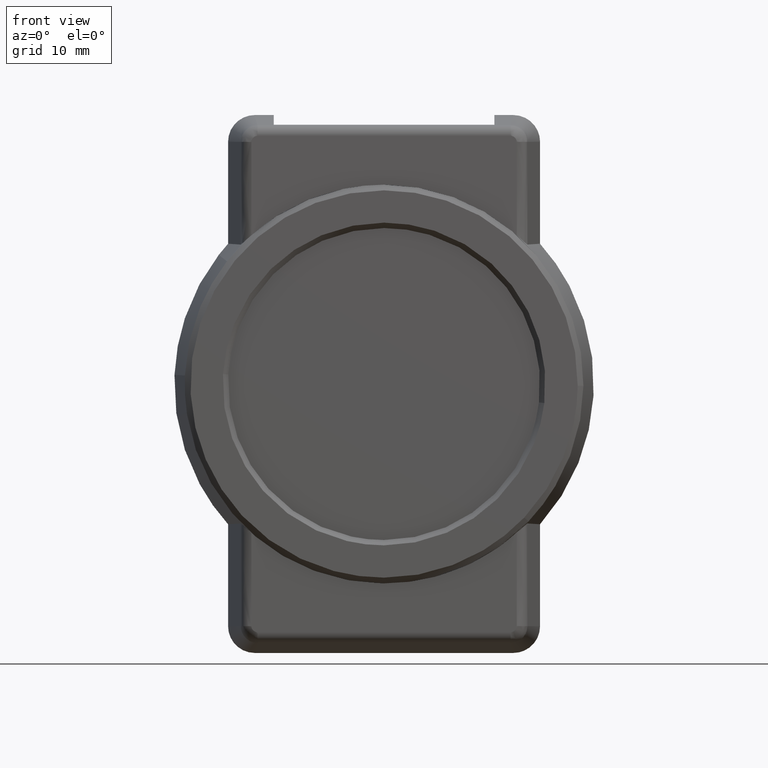
[diagram: clean part render]
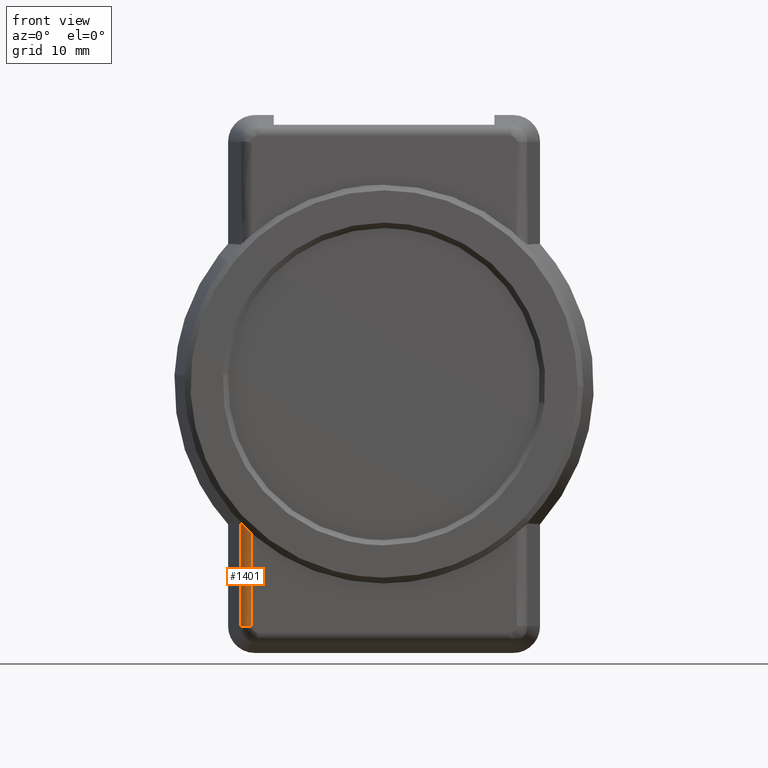
[diagram: same view with one face highlighted and labeled with its STEP entity id]
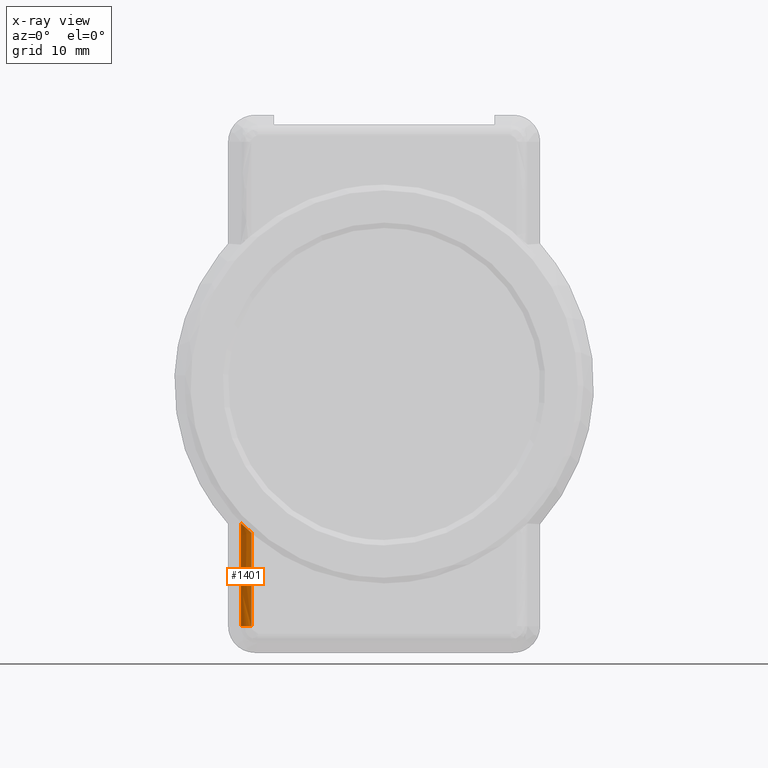
[diagram: x-ray of the same camera — body ghosted, the highlighted face saturated]
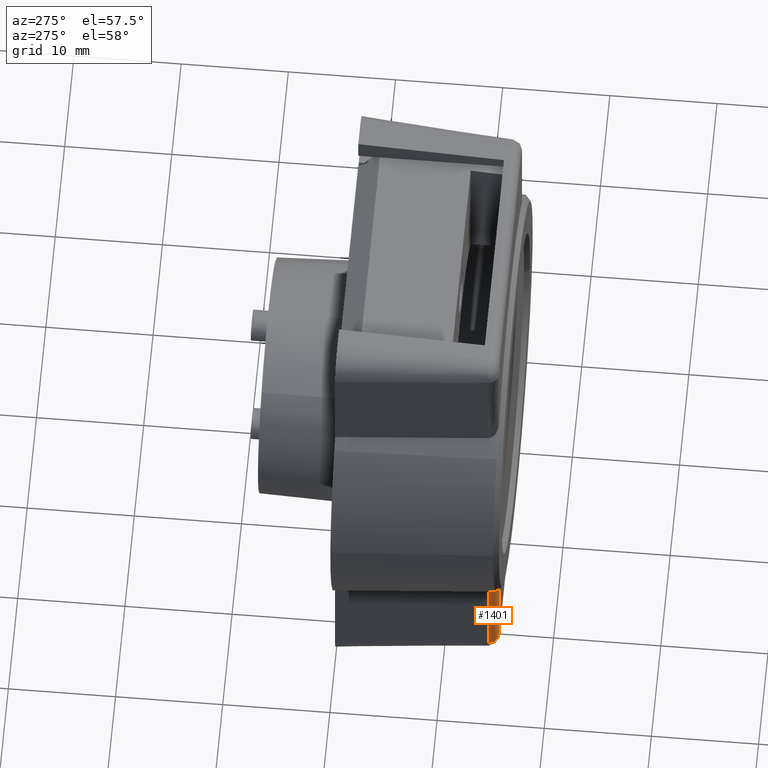
[diagram: same view with one face highlighted and labeled with its STEP entity id]
A machine part, front view. The second image highlights one B-rep face of the part: STEP entity #1401.
The next image is the same camera in x-ray: the body ghosted, the highlighted face saturated — about 0% of this face is hidden behind the body in this view.
A second angle (auxiliary view) of the same face is appended — the face is thin or edge-on in the first view.
In plain terms, the highlighted face is a freeform B-spline surface patch.
Its self-contained STEP definition (entity closure, byte-faithful):
#499=CARTESIAN_POINT('',(14.182498803140099,13.325958708582240,12.962989763626579));
#500=VERTEX_POINT('',#499);
#514=CARTESIAN_POINT('',(15.100000000000000,12.329367544924621,13.835592549919960));
#515=VERTEX_POINT('',#514);
#516=CARTESIAN_POINT('',(14.182498803140099,13.325958708582240,12.962989763626579));
#517=CARTESIAN_POINT('',(14.256734744568730,13.319813383858151,12.962482452375820));
#518=CARTESIAN_POINT('',(14.328113242120690,13.305664842219869,12.970476720768071));
#519=CARTESIAN_POINT('',(14.431322887805241,13.273572586216300,12.993841472671340));
#520=CARTESIAN_POINT('',(14.465164131016170,13.260971513142650,13.003608784547399));
#521=CARTESIAN_POINT('',(14.529552371106810,13.233090708651700,13.026097574512571));
#522=CARTESIAN_POINT('',(14.560383602459421,13.217736965020460,13.038868854206120));
#523=CARTESIAN_POINT('',(14.619591626586431,13.184456914263411,13.067128475826239));
#524=CARTESIAN_POINT('',(14.648099854349971,13.166433244575529,13.082702552520040));
#525=CARTESIAN_POINT('',(14.702176671560871,13.128414284545270,13.115949782366791));
#526=CARTESIAN_POINT('',(14.727609813518340,13.108539915774470,13.133514419227680));
#527=CARTESIAN_POINT('',(14.799701719549869,13.046606800501269,13.188626611550751));
#528=CARTESIAN_POINT('',(14.842195861683960,13.002260196909649,13.228566226406031));
#529=CARTESIAN_POINT('',(14.898827563130491,12.931683349907431,13.292389863772790));
#530=CARTESIAN_POINT('',(14.916444907009650,12.907533635995780,13.314271730804579));
#531=CARTESIAN_POINT('',(14.948892603235061,12.858744219155080,13.358511000881769));
#532=CARTESIAN_POINT('',(14.963802762777000,12.834006619686280,13.380957047359130));
#533=CARTESIAN_POINT('',(15.004896202824730,12.758816141549779,13.449167560601660));
#534=CARTESIAN_POINT('',(15.027470400362301,12.707391611425390,13.495796054269050));
#535=CARTESIAN_POINT('',(15.063720013974180,12.602034508577351,13.591059456140840));
#536=CARTESIAN_POINT('',(15.077384150674670,12.547891953801230,13.639882679399360));
#537=CARTESIAN_POINT('',(15.095469327433699,12.439247085347811,13.737472594366100));
#538=CARTESIAN_POINT('',(15.100000000000000,12.384516642914150,13.786447311186560));
#539=CARTESIAN_POINT('',(15.100000000000000,12.329367544924621,13.835592549919960));
#540=B_SPLINE_CURVE_WITH_KNOTS('',3,(#516,#517,#518,#519,#520,#521,#522,#523,#524,#525,#526,#527,#528,#529,#530,#531,#532,#533,#534,#535,#536,#537,#538,#539),.UNSPECIFIED.,.F.,.U.,(4,2,2,2,2,2,2,2,2,2,2,4),(0.0,0.124999999999996,0.187499999999996,0.249999999999995,0.312499999999994,0.374999999999993,0.499999999999995,0.562499999999996,0.624999999999997,0.749999999999998,0.874999999999999,1.0),.UNSPECIFIED.);
#541=EDGE_CURVE('',#500,#515,#540,.T.);
#1229=CARTESIAN_POINT('',(15.100000000000000,12.329367544924621,22.504391323943601));
#1230=VERTEX_POINT('',#1229);
#1231=CARTESIAN_POINT('',(14.182498803140160,13.325958708582240,22.504391323943601));
#1232=VERTEX_POINT('',#1231);
#1233=CARTESIAN_POINT('',(15.100000000000000,12.329367544924621,22.504391323943601));
#1234=CARTESIAN_POINT('',(15.099999999999994,13.250007051191657,22.504391323943608));
#1235=CARTESIAN_POINT('',(14.182498803140160,13.325958708582240,22.504391323943601));
#1243=(BOUNDED_CURVE()B_SPLINE_CURVE(2,(#1233,#1234,#1235),.UNSPECIFIED.,.F.,.U.)CURVE()GEOMETRIC_REPRESENTATION_ITEM()QUASI_UNIFORM_CURVE()RATIONAL_B_SPLINE_CURVE((1.0,0.735696541768466,1.0))REPRESENTATION_ITEM(''));
#1244=EDGE_CURVE('',#1230,#1232,#1243,.T.);
#1373=CARTESIAN_POINT('',(14.156382817485630,13.327776768586130,12.724454724618649));
#1374=CARTESIAN_POINT('',(14.156382817485630,13.327776768586130,22.748889738926731));
#1375=CARTESIAN_POINT('',(15.154792041147150,13.271393951100503,12.724454724618655));
#1376=CARTESIAN_POINT('',(15.154792041147150,13.271393951100503,22.748889738926728));
#1377=CARTESIAN_POINT('',(15.098409223661511,12.272984727438990,12.724454724618649));
#1378=CARTESIAN_POINT('',(15.098409223661511,12.272984727438990,22.748889738926731));
#1386=(BOUNDED_SURFACE()B_SPLINE_SURFACE(1,2,((#1373,#1375,#1377),(#1374,#1376,#1378)),.UNSPECIFIED.,.F.,.F.,.U.)B_SPLINE_SURFACE_WITH_KNOTS((2,2),(3,3),(0.0,10.024435014308080),(0.0,1.0),.UNSPECIFIED.)GEOMETRIC_REPRESENTATION_ITEM()RATIONAL_B_SPLINE_SURFACE(((1.0,0.707106781186548,1.0),(1.0,0.707106781186548,1.0)))REPRESENTATION_ITEM('')SURFACE());
#1387=ORIENTED_EDGE('',*,*,#541,.F.);
#1388=CARTESIAN_POINT('',(14.182498803140160,13.325958708582240,22.504391323943601));
#1389=CARTESIAN_POINT('',(14.182498803140099,13.325958708582240,12.962989763626579));
#1390=QUASI_UNIFORM_CURVE('',1,(#1388,#1389),.UNSPECIFIED.,.F.,.U.);
#1391=EDGE_CURVE('',#1232,#500,#1390,.T.);
#1392=ORIENTED_EDGE('',*,*,#1391,.F.);
#1393=ORIENTED_EDGE('',*,*,#1244,.F.);
#1394=CARTESIAN_POINT('',(15.100000000000000,12.329367544924621,13.835592549919960));
#1395=CARTESIAN_POINT('',(15.100000000000000,12.329367544924621,22.504391323943601));
#1396=QUASI_UNIFORM_CURVE('',1,(#1394,#1395),.UNSPECIFIED.,.F.,.U.);
#1397=EDGE_CURVE('',#515,#1230,#1396,.T.);
#1398=ORIENTED_EDGE('',*,*,#1397,.F.);
#1399=EDGE_LOOP('',(#1387,#1392,#1393,#1398));
#1400=FACE_OUTER_BOUND('',#1399,.T.);
#1401=ADVANCED_FACE('',(#1400),#1386,.T.);